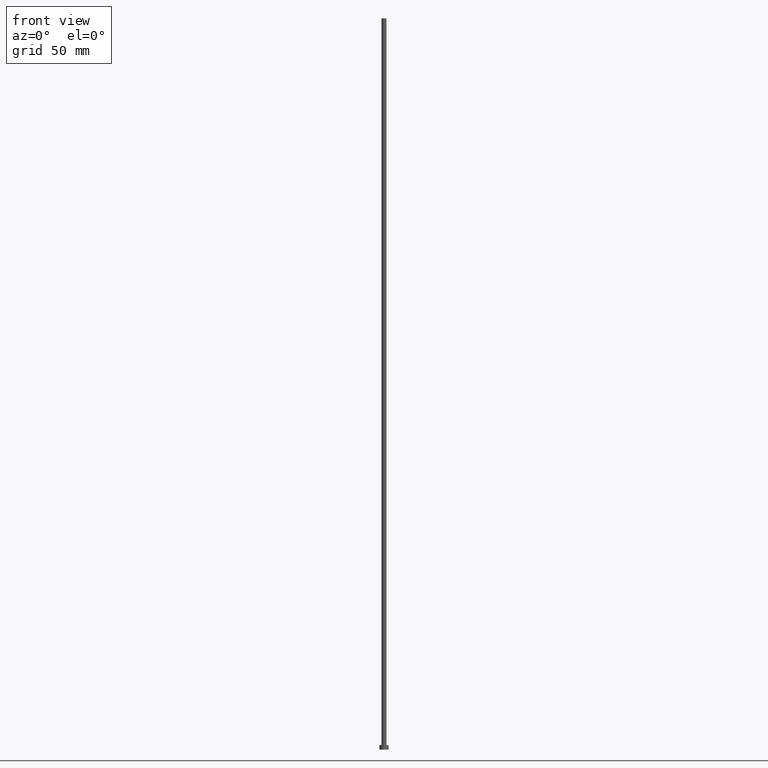
[diagram: clean part render]
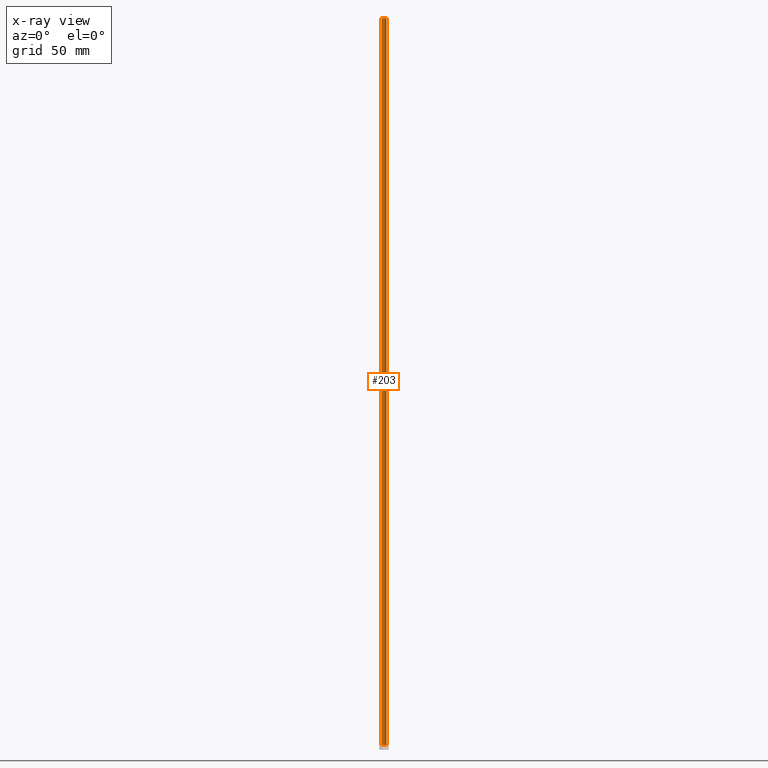
[diagram: x-ray — body ghosted, one internal face saturated and labeled with its STEP entity id]
A machine part, front view, then the same camera in x-ray: the body is ghosted and one INTERNAL B-rep face — a face not visible from any outside direction — is saturated and labeled: STEP entity #203.
In plain terms, the highlighted cylindrical surface (edge-blend (fillet) strip) has radius 1.1 mm, axis along (-0, -0, -1).
Its self-contained STEP definition (entity closure, byte-faithful):
#8 = FACE_OUTER_BOUND ( 'NONE', #185, .T. ) ;
#14 = DIRECTION ( 'NONE',  ( 1.000000000000000000, 0.000000000000000000, 0.000000000000000000 ) ) ;
#17 = CARTESIAN_POINT ( 'NONE',  ( 1.100000000000000089, 1.347111479062088503E-16, 315.0000000000000000 ) ) ;
#18 = EDGE_CURVE ( 'NONE', #232, #72, #33, .T. ) ;
#23 = EDGE_CURVE ( 'NONE', #72, #143, #228, .T. ) ;
#24 = CIRCLE ( 'NONE', #44, 1.100000000000000089 ) ;
#33 = LINE ( 'NONE', #17, #179 ) ;
#34 = AXIS2_PLACEMENT_3D ( 'NONE', #71, #86, #132 ) ;
#41 = CARTESIAN_POINT ( 'NONE',  ( -1.100000000000000089, 0.000000000000000000, 2.000000000000000000 ) ) ;
#44 = AXIS2_PLACEMENT_3D ( 'NONE', #162, #129, #14 ) ;
#49 = ORIENTED_EDGE ( 'NONE', *, *, #139, .F. ) ;
#53 = VERTEX_POINT ( 'NONE', #214 ) ;
#62 = LINE ( 'NONE', #199, #201 ) ;
#71 = CARTESIAN_POINT ( 'NONE',  ( 0.000000000000000000, 0.000000000000000000, 315.0000000000000000 ) ) ;
#72 = VERTEX_POINT ( 'NONE', #149 ) ;
#80 = CYLINDRICAL_SURFACE ( 'NONE', #34, 1.100000000000000089 ) ;
#84 = ORIENTED_EDGE ( 'NONE', *, *, #23, .T. ) ;
#86 = DIRECTION ( 'NONE',  ( -0.000000000000000000, -0.000000000000000000, -1.000000000000000000 ) ) ;
#87 = DIRECTION ( 'NONE',  ( -0.000000000000000000, -0.000000000000000000, -1.000000000000000000 ) ) ;
#106 = EDGE_CURVE ( 'NONE', #232, #53, #24, .T. ) ;
#111 = AXIS2_PLACEMENT_3D ( 'NONE', #234, #173, #153 ) ;
#129 = DIRECTION ( 'NONE',  ( 0.000000000000000000, 0.000000000000000000, 1.000000000000000000 ) ) ;
#132 = DIRECTION ( 'NONE',  ( -1.000000000000000000, 0.000000000000000000, 0.000000000000000000 ) ) ;
#139 = EDGE_CURVE ( 'NONE', #53, #143, #62, .T. ) ;
#143 = VERTEX_POINT ( 'NONE', #41 ) ;
#149 = CARTESIAN_POINT ( 'NONE',  ( 1.100000000000000089, 1.347111479062088503E-16, 2.000000000000000000 ) ) ;
#153 = DIRECTION ( 'NONE',  ( 1.000000000000000000, 0.000000000000000000, 0.000000000000000000 ) ) ;
#162 = CARTESIAN_POINT ( 'NONE',  ( 0.000000000000000000, 0.000000000000000000, 315.0000000000000000 ) ) ;
#165 = ORIENTED_EDGE ( 'NONE', *, *, #106, .F. ) ;
#167 = ORIENTED_EDGE ( 'NONE', *, *, #18, .T. ) ;
#173 = DIRECTION ( 'NONE',  ( 0.000000000000000000, 0.000000000000000000, 1.000000000000000000 ) ) ;
#179 = VECTOR ( 'NONE', #87, 1000.000000000000000 ) ;
#185 = EDGE_LOOP ( 'NONE', ( #165, #167, #84, #49 ) ) ;
#199 = CARTESIAN_POINT ( 'NONE',  ( -1.100000000000000089, 0.000000000000000000, 315.0000000000000000 ) ) ;
#201 = VECTOR ( 'NONE', #225, 1000.000000000000000 ) ;
#203 = ADVANCED_FACE ( 'NONE', ( #8 ), #80, .T. ) ;
#207 = CARTESIAN_POINT ( 'NONE',  ( 1.100000000000000089, 1.347111479062088503E-16, 315.0000000000000000 ) ) ;
#214 = CARTESIAN_POINT ( 'NONE',  ( -1.100000000000000089, 0.000000000000000000, 315.0000000000000000 ) ) ;
#225 = DIRECTION ( 'NONE',  ( -0.000000000000000000, -0.000000000000000000, -1.000000000000000000 ) ) ;
#228 = CIRCLE ( 'NONE', #111, 1.100000000000000089 ) ;
#232 = VERTEX_POINT ( 'NONE', #207 ) ;
#234 = CARTESIAN_POINT ( 'NONE',  ( 0.000000000000000000, 0.000000000000000000, 2.000000000000000000 ) ) ;